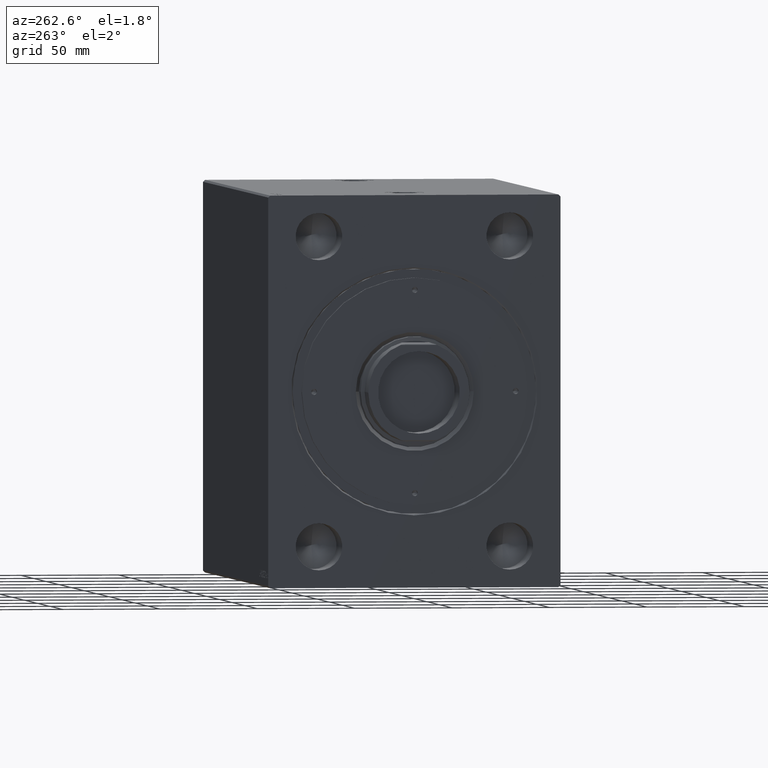
[diagram: clean part render]
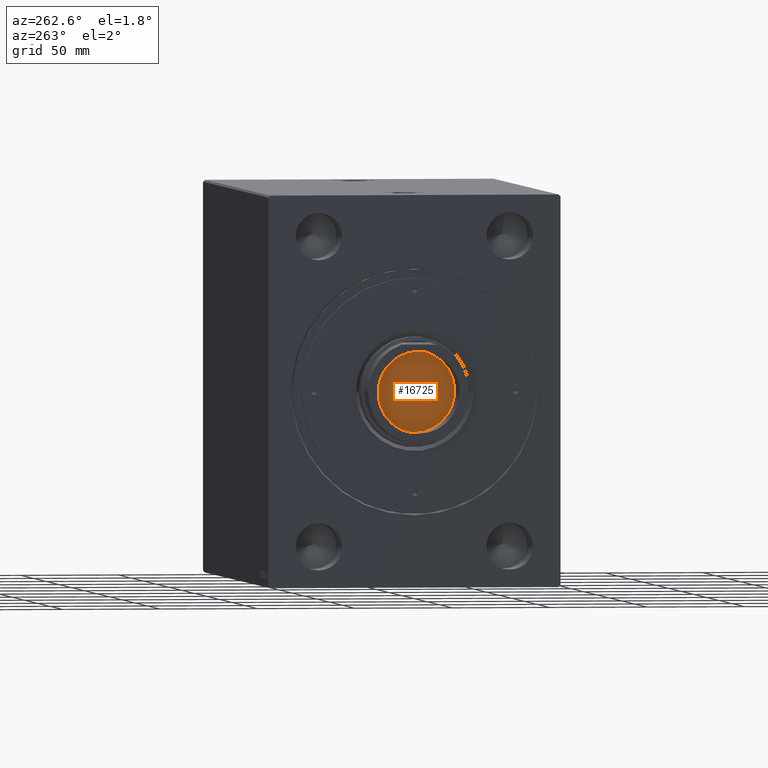
[diagram: same view with one face highlighted and labeled with its STEP entity id]
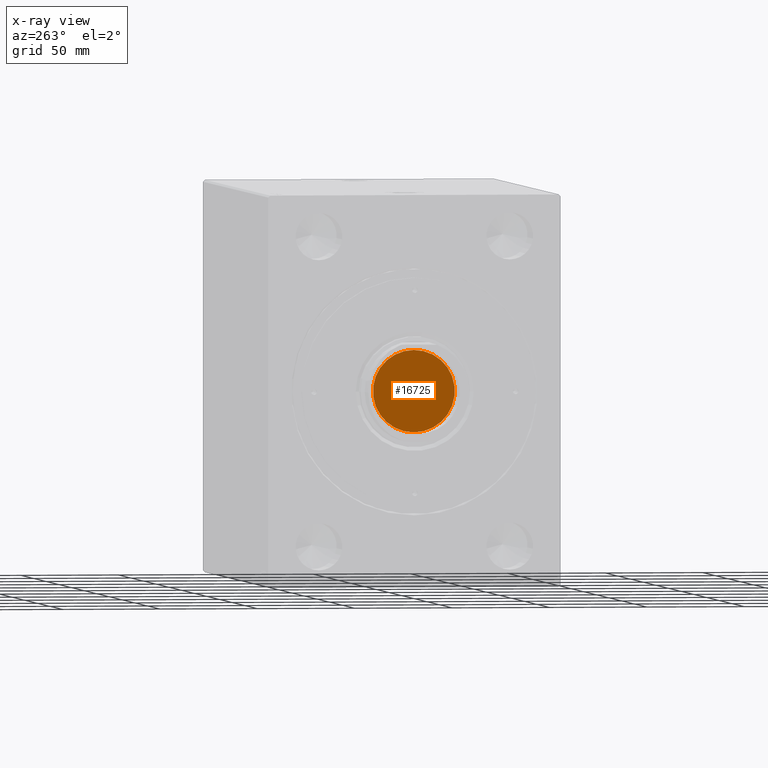
[diagram: x-ray of the same camera — body ghosted, the highlighted face saturated]
A machine part, auxiliary view. The second image highlights one B-rep face of the part: STEP entity #16725.
The next image is the same camera in x-ray: the body ghosted, the highlighted face saturated — about 0% of this face is hidden behind the body in this view.
In plain terms, the highlighted planar face has unit normal (-1, 0, 0).
Its self-contained STEP definition (entity closure, byte-faithful):
#906 = ORIENTED_EDGE ( 'NONE', *, *, #3334, .T. ) ;
#1507 = CARTESIAN_POINT ( 'NONE',  ( 0.000000000000000000, -2.863188939531091061E-14, 153.0000000000000000 ) ) ;
#3162 = CARTESIAN_POINT ( 'NONE',  ( 0.000000000000000000, -2.863188939531091061E-14, 153.0000000000000000 ) ) ;
#3334 = EDGE_CURVE ( 'NONE', #19398, #21301, #10945, .T. ) ;
#4066 = CIRCLE ( 'NONE', #11941, 21.00000000000000000 ) ;
#7528 = EDGE_CURVE ( 'NONE', #21301, #19398, #4066, .T. ) ;
#10945 = CIRCLE ( 'NONE', #28173, 21.00000000000000000 ) ;
#11387 = CARTESIAN_POINT ( 'NONE',  ( -21.00000000000000000, -2.606013111710146619E-14, 153.0000000000000000 ) ) ;
#11941 = AXIS2_PLACEMENT_3D ( 'NONE', #1507, #28664, #25293 ) ;
#13220 = FACE_OUTER_BOUND ( 'NONE', #37348, .T. ) ;
#16414 = DIRECTION ( 'NONE',  ( 1.000000000000000000, 0.000000000000000000, 0.000000000000000000 ) ) ;
#16725 = ADVANCED_FACE ( 'NONE', ( #13220 ), #20621, .T. ) ;
#19398 = VERTEX_POINT ( 'NONE', #20477 ) ;
#20211 = ORIENTED_EDGE ( 'NONE', *, *, #7528, .T. ) ;
#20477 = CARTESIAN_POINT ( 'NONE',  ( 21.00000000000000000, -2.863188939531091061E-14, 153.0000000000000000 ) ) ;
#20621 = PLANE ( 'NONE',  #40705 ) ;
#21301 = VERTEX_POINT ( 'NONE', #11387 ) ;
#25293 = DIRECTION ( 'NONE',  ( 1.000000000000000000, 0.000000000000000000, 0.000000000000000000 ) ) ;
#26939 = CARTESIAN_POINT ( 'NONE',  ( 0.000000000000000000, -2.863188939531091061E-14, 153.0000000000000000 ) ) ;
#28173 = AXIS2_PLACEMENT_3D ( 'NONE', #3162, #36641, #16414 ) ;
#28664 = DIRECTION ( 'NONE',  ( 0.000000000000000000, 0.000000000000000000, 1.000000000000000000 ) ) ;
#36641 = DIRECTION ( 'NONE',  ( 0.000000000000000000, 0.000000000000000000, 1.000000000000000000 ) ) ;
#37268 = DIRECTION ( 'NONE',  ( 1.000000000000000000, 0.000000000000000000, -0.000000000000000000 ) ) ;
#37348 = EDGE_LOOP ( 'NONE', ( #906, #20211 ) ) ;
#40705 = AXIS2_PLACEMENT_3D ( 'NONE', #26939, #40861, #37268 ) ;
#40861 = DIRECTION ( 'NONE',  ( 0.000000000000000000, 0.000000000000000000, 1.000000000000000000 ) ) ;